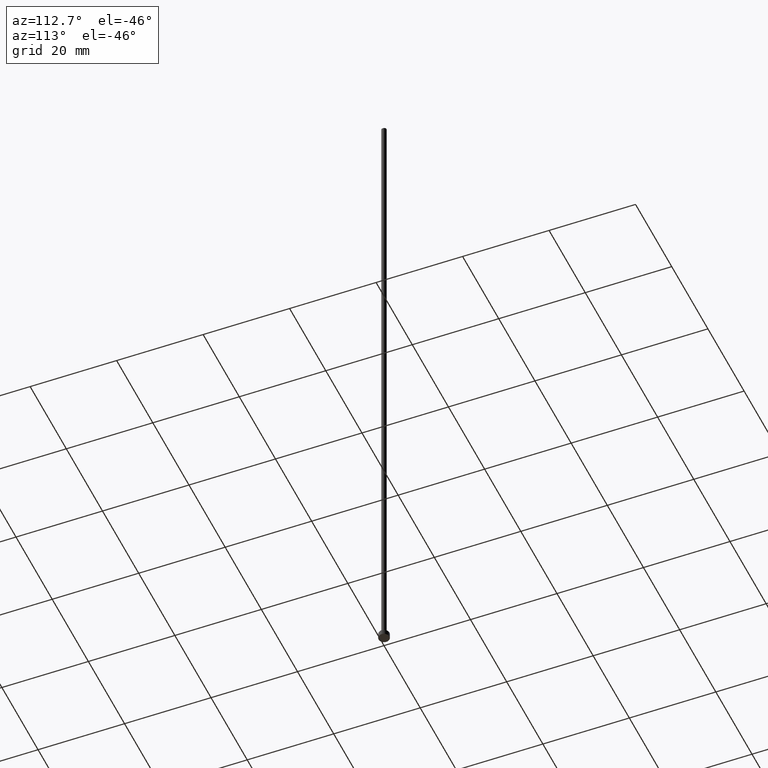
[diagram: clean part render]
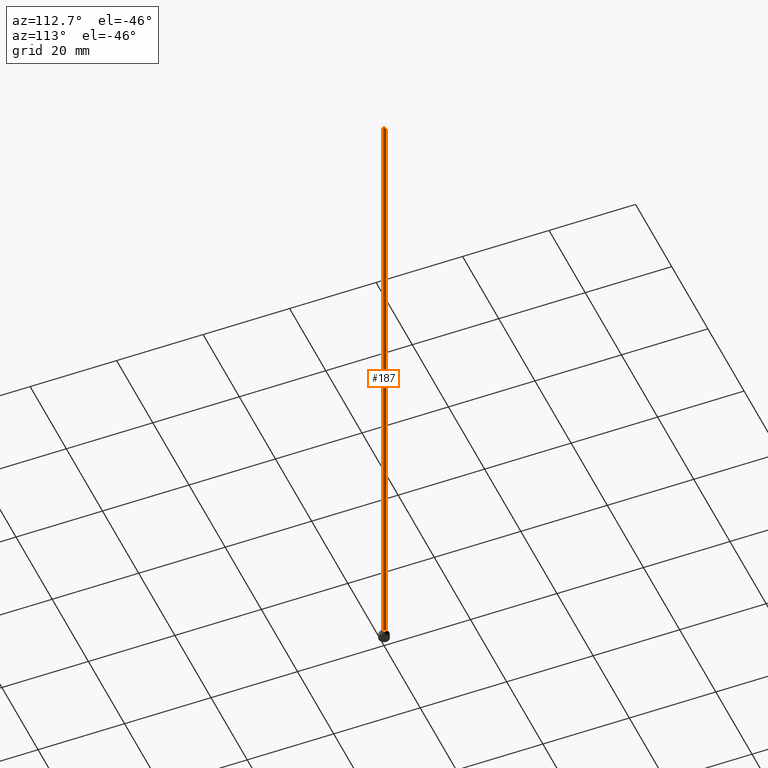
[diagram: same view with one face highlighted and labeled with its STEP entity id]
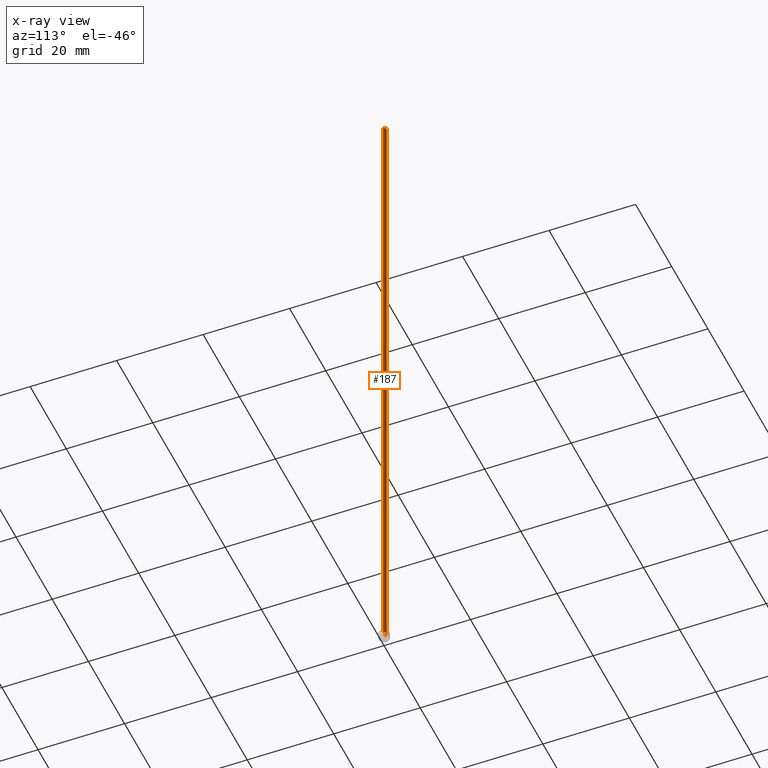
[diagram: x-ray of the same camera — body ghosted, the highlighted face saturated]
A machine part, auxiliary view. The second image highlights one B-rep face of the part: STEP entity #187.
The next image is the same camera in x-ray: the body ghosted, the highlighted face saturated — about 0% of this face is hidden behind the body in this view.
In plain terms, the highlighted cylindrical surface (edge-blend (fillet) strip) has radius 0.6 mm, axis along (-0, -0, -1).
Its self-contained STEP definition (entity closure, byte-faithful):
#10 = ORIENTED_EDGE ( 'NONE', *, *, #232, .T. ) ;
#15 = VERTEX_POINT ( 'NONE', #152 ) ;
#18 = EDGE_CURVE ( 'NONE', #26, #127, #145, .T. ) ;
#19 = CARTESIAN_POINT ( 'NONE',  ( 0.000000000000000000, 0.000000000000000000, 156.0000000000000284 ) ) ;
#21 = DIRECTION ( 'NONE',  ( -0.000000000000000000, -0.000000000000000000, -1.000000000000000000 ) ) ;
#26 = VERTEX_POINT ( 'NONE', #133 ) ;
#28 = DIRECTION ( 'NONE',  ( -0.000000000000000000, -0.000000000000000000, -1.000000000000000000 ) ) ;
#29 = CIRCLE ( 'NONE', #208, 0.5999999999999999778 ) ;
#40 = FACE_OUTER_BOUND ( 'NONE', #162, .T. ) ;
#53 = DIRECTION ( 'NONE',  ( 1.000000000000000000, 0.000000000000000000, 0.000000000000000000 ) ) ;
#64 = VECTOR ( 'NONE', #138, 1000.000000000000000 ) ;
#90 = LINE ( 'NONE', #196, #217 ) ;
#98 = DIRECTION ( 'NONE',  ( -1.000000000000000000, 0.000000000000000000, 0.000000000000000000 ) ) ;
#102 = DIRECTION ( 'NONE',  ( 0.000000000000000000, 0.000000000000000000, 1.000000000000000000 ) ) ;
#104 = VERTEX_POINT ( 'NONE', #141 ) ;
#119 = LINE ( 'NONE', #159, #64 ) ;
#122 = CYLINDRICAL_SURFACE ( 'NONE', #167, 0.5999999999999999778 ) ;
#127 = VERTEX_POINT ( 'NONE', #214 ) ;
#129 = ORIENTED_EDGE ( 'NONE', *, *, #140, .F. ) ;
#133 = CARTESIAN_POINT ( 'NONE',  ( 0.5999999999999999778, 7.347880794884117764E-17, 1.199999999999999956 ) ) ;
#138 = DIRECTION ( 'NONE',  ( -0.000000000000000000, -0.000000000000000000, -1.000000000000000000 ) ) ;
#140 = EDGE_CURVE ( 'NONE', #15, #127, #119, .T. ) ;
#141 = CARTESIAN_POINT ( 'NONE',  ( 0.5999999999999999778, 7.347880794884117764E-17, 156.0000000000000284 ) ) ;
#145 = CIRCLE ( 'NONE', #169, 0.5999999999999999778 ) ;
#148 = ORIENTED_EDGE ( 'NONE', *, *, #18, .T. ) ;
#152 = CARTESIAN_POINT ( 'NONE',  ( -0.5999999999999999778, 0.000000000000000000, 156.0000000000000284 ) ) ;
#159 = CARTESIAN_POINT ( 'NONE',  ( -0.5999999999999999778, 0.000000000000000000, 156.0000000000000284 ) ) ;
#162 = EDGE_LOOP ( 'NONE', ( #227, #10, #148, #129 ) ) ;
#166 = EDGE_CURVE ( 'NONE', #104, #15, #29, .T. ) ;
#167 = AXIS2_PLACEMENT_3D ( 'NONE', #19, #21, #98 ) ;
#169 = AXIS2_PLACEMENT_3D ( 'NONE', #249, #233, #53 ) ;
#187 = ADVANCED_FACE ( 'NONE', ( #40 ), #122, .T. ) ;
#192 = DIRECTION ( 'NONE',  ( 1.000000000000000000, 0.000000000000000000, 0.000000000000000000 ) ) ;
#196 = CARTESIAN_POINT ( 'NONE',  ( 0.5999999999999999778, 7.347880794884117764E-17, 156.0000000000000284 ) ) ;
#208 = AXIS2_PLACEMENT_3D ( 'NONE', #239, #102, #192 ) ;
#214 = CARTESIAN_POINT ( 'NONE',  ( -0.5999999999999999778, 0.000000000000000000, 1.199999999999999956 ) ) ;
#217 = VECTOR ( 'NONE', #28, 1000.000000000000000 ) ;
#227 = ORIENTED_EDGE ( 'NONE', *, *, #166, .F. ) ;
#232 = EDGE_CURVE ( 'NONE', #104, #26, #90, .T. ) ;
#233 = DIRECTION ( 'NONE',  ( 0.000000000000000000, 0.000000000000000000, 1.000000000000000000 ) ) ;
#239 = CARTESIAN_POINT ( 'NONE',  ( 0.000000000000000000, 0.000000000000000000, 156.0000000000000284 ) ) ;
#249 = CARTESIAN_POINT ( 'NONE',  ( 0.000000000000000000, 0.000000000000000000, 1.199999999999999956 ) ) ;